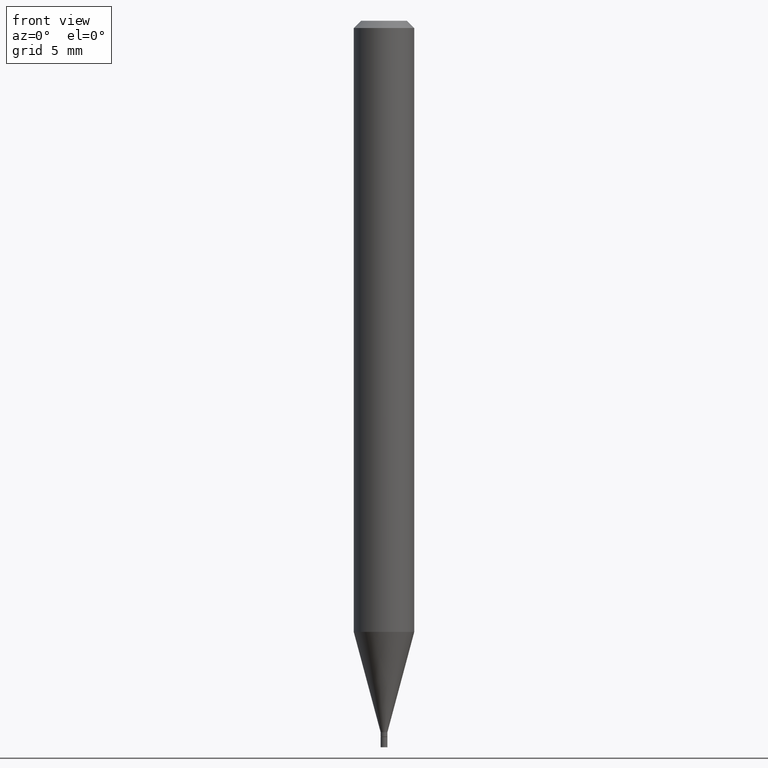
[diagram: clean part render]
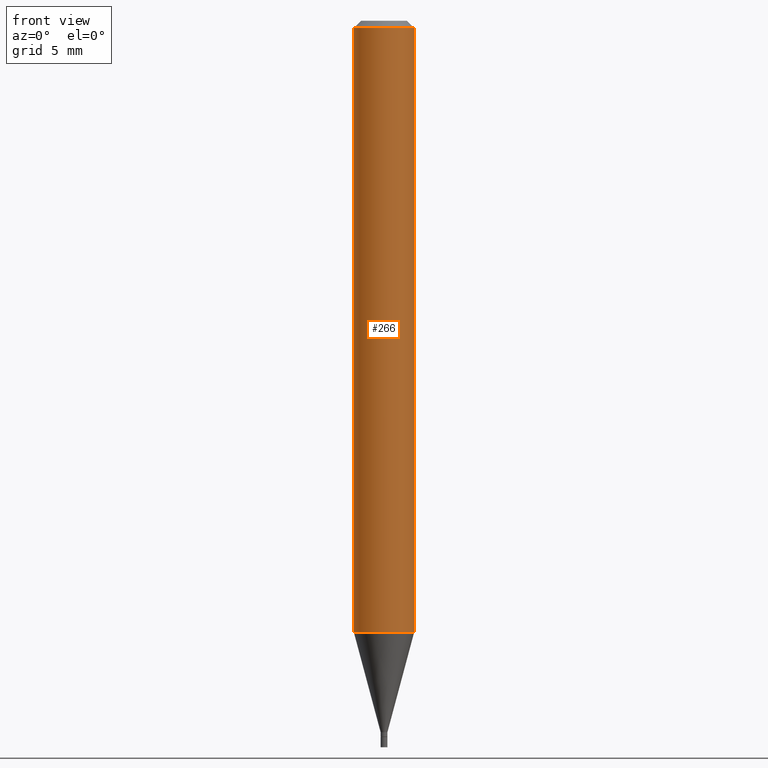
[diagram: same view with one face highlighted and labeled with its STEP entity id]
A machine part, front view. The second image highlights one B-rep face of the part: STEP entity #266.
In plain terms, the highlighted cylindrical surface (edge-blend (fillet) strip) has radius 1.5875 mm, axis along (-0, 0, 1).
Its self-contained STEP definition (entity closure, byte-faithful):
#12 = DIRECTION ( 'NONE',  ( -2.445468806185136597E-29, 3.491481338843145583E-15, 1.000000000000000000 ) ) ;
#20 = CARTESIAN_POINT ( 'NONE',  ( -0.06249999999999999306, -3.961710467772130736E-15, -1.261871180179927610 ) ) ;
#26 = ORIENTED_EDGE ( 'NONE', *, *, #67, .F. ) ;
#38 = VECTOR ( 'NONE', #98, 39.37007874015748143 ) ;
#67 = EDGE_CURVE ( 'NONE', #277, #197, #215, .T. ) ;
#90 = CARTESIAN_POINT ( 'NONE',  ( 0.06249999999999999306, -4.842234844977585811E-15, -1.261871180179927610 ) ) ;
#98 = DIRECTION ( 'NONE',  ( -2.445468806185136877E-29, 3.491481338843145188E-15, 1.000000000000000000 ) ) ;
#108 = CARTESIAN_POINT ( 'NONE',  ( -0.06250000000000000000, -1.784996739002358191E-15, -0.01499999999999999944 ) ) ;
#110 = CARTESIAN_POINT ( 'NONE',  ( 3.085866608554036727E-29, -4.405799677622194141E-15, -1.261871180179927610 ) ) ;
#111 = DIRECTION ( 'NONE',  ( -2.445468806185136877E-29, 3.491481338843145188E-15, 1.000000000000000000 ) ) ;
#127 = DIRECTION ( 'NONE',  ( 1.000000000000000000, -6.982962677686266711E-15, 4.876176775795935793E-29 ) ) ;
#154 = DIRECTION ( 'NONE',  ( -2.445468806185136597E-29, 3.491481338843145583E-15, 1.000000000000000000 ) ) ;
#185 = EDGE_CURVE ( 'NONE', #277, #424, #229, .T. ) ;
#187 = ORIENTED_EDGE ( 'NONE', *, *, #448, .F. ) ;
#197 = VERTEX_POINT ( 'NONE', #108 ) ;
#215 = LINE ( 'NONE', #374, #370 ) ;
#220 = CARTESIAN_POINT ( 'NONE',  ( 3.668203209277705088E-31, -5.237222008264718399E-17, -0.01499999999999999944 ) ) ;
#229 = CIRCLE ( 'NONE', #249, 0.06250000000000000000 ) ;
#230 = CIRCLE ( 'NONE', #452, 0.06250000000000000000 ) ;
#237 = LINE ( 'NONE', #421, #38 ) ;
#243 = EDGE_LOOP ( 'NONE', ( #26, #311, #282, #187 ) ) ;
#249 = AXIS2_PLACEMENT_3D ( 'NONE', #110, #432, #371 ) ;
#266 = ADVANCED_FACE ( 'NONE', ( #391 ), #384, .T. ) ;
#277 = VERTEX_POINT ( 'NONE', #20 ) ;
#282 = ORIENTED_EDGE ( 'NONE', *, *, #288, .T. ) ;
#288 = EDGE_CURVE ( 'NONE', #424, #392, #237, .T. ) ;
#302 = DIRECTION ( 'NONE',  ( 1.000000000000000000, -6.982962677686266711E-15, 0.000000000000000000 ) ) ;
#311 = ORIENTED_EDGE ( 'NONE', *, *, #185, .T. ) ;
#350 = CARTESIAN_POINT ( 'NONE',  ( 0.000000000000000000, 0.000000000000000000, 0.000000000000000000 ) ) ;
#361 = AXIS2_PLACEMENT_3D ( 'NONE', #350, #12, #127 ) ;
#370 = VECTOR ( 'NONE', #111, 39.37007874015748143 ) ;
#371 = DIRECTION ( 'NONE',  ( 1.000000000000000000, -6.982962677686262766E-15, 0.000000000000000000 ) ) ;
#373 = CARTESIAN_POINT ( 'NONE',  ( 0.06250000000000000000, -4.888073874380388472E-16, -0.01499999999999999944 ) ) ;
#374 = CARTESIAN_POINT ( 'NONE',  ( -0.06250000000000000000, 4.440892098500626162E-16, -3.074334431409316114E-30 ) ) ;
#384 = CYLINDRICAL_SURFACE ( 'NONE', #361, 0.06250000000000000000 ) ;
#391 = FACE_OUTER_BOUND ( 'NONE', #243, .T. ) ;
#392 = VERTEX_POINT ( 'NONE', #373 ) ;
#421 = CARTESIAN_POINT ( 'NONE',  ( 0.06250000000000000000, -4.364351673553916694E-16, 3.047610484872459871E-30 ) ) ;
#424 = VERTEX_POINT ( 'NONE', #90 ) ;
#432 = DIRECTION ( 'NONE',  ( -2.445468806185136597E-29, 3.491481338843145583E-15, 1.000000000000000000 ) ) ;
#448 = EDGE_CURVE ( 'NONE', #197, #392, #230, .T. ) ;
#452 = AXIS2_PLACEMENT_3D ( 'NONE', #220, #154, #302 ) ;